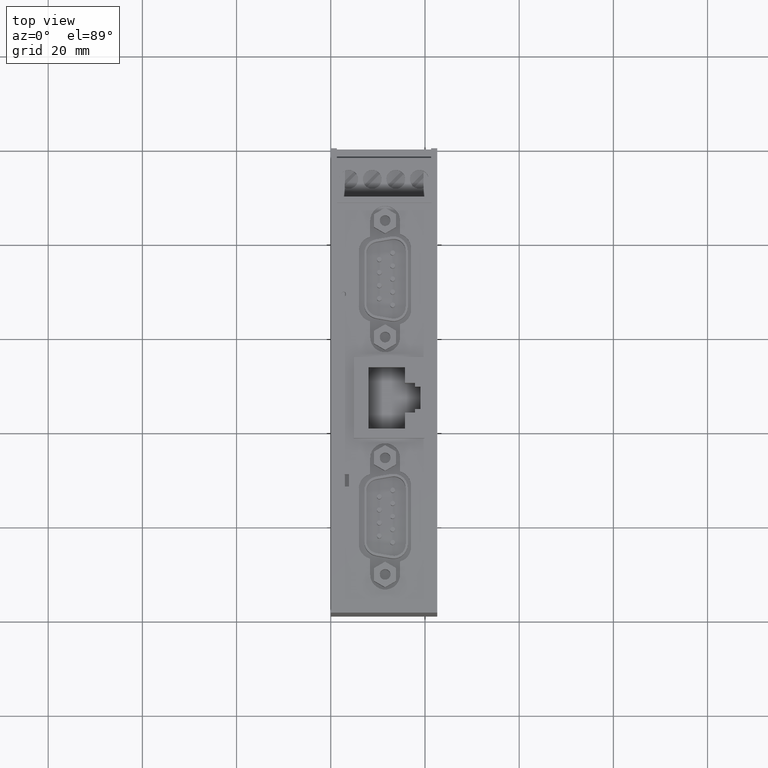
[diagram: clean part render]
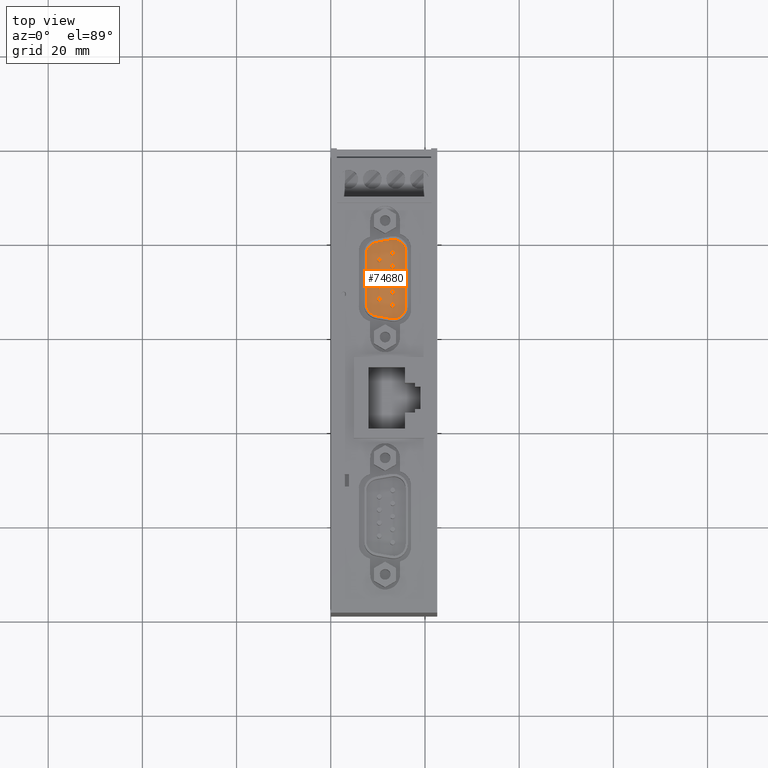
[diagram: same view with one face highlighted and labeled with its STEP entity id]
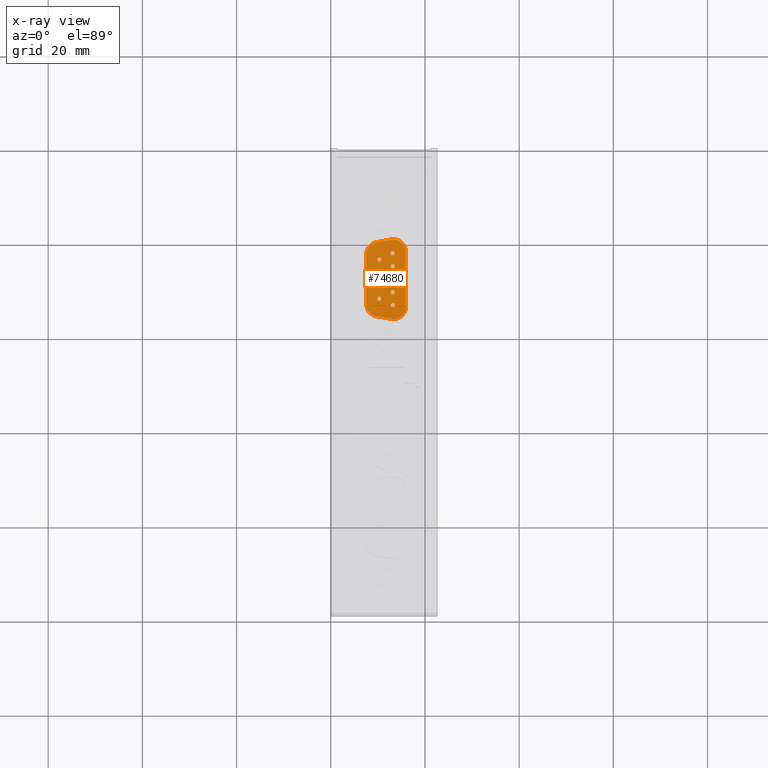
[diagram: x-ray of the same camera — body ghosted, the highlighted face saturated]
A machine part, top view. The second image highlights one B-rep face of the part: STEP entity #74680.
The next image is the same camera in x-ray: the body ghosted, the highlighted face saturated — about 0% of this face is hidden behind the body in this view.
In plain terms, the highlighted planar face has unit normal (0, -0, -1).
Its self-contained STEP definition (entity closure, byte-faithful):
#20310=CARTESIAN_POINT('',(2.91895186649419,104.799999999976,
10.3057559605303));
#20320=VERTEX_POINT('',#20310);
#20350=CARTESIAN_POINT('',(2.41895186649419,104.799999999976,
10.3057559605303));
#20360=DIRECTION('',(4.90822482988215E-15,-1.,-1.2878153174413E-13));
#20370=DIRECTION('',(-1.,-4.90822482988323E-15,8.39984454683187E-15));
#20380=AXIS2_PLACEMENT_3D('',#20350,#20360,#20370);
#20390=CIRCLE('',#20380,0.5);
#20400=CARTESIAN_POINT('',(1.91895186649419,104.799999999977,
10.3057559605303));
#20410=VERTEX_POINT('',#20400);
#20420=EDGE_CURVE('',#20320,#20410,#20390,.T.);
#62860=CARTESIAN_POINT('',(-17.6082481189499,104.799999999991,
12.9509999999802));
#62870=DIRECTION('',(-7.38964445188328E-13,-1.,8.76330016597908E-25));
#62880=DIRECTION('',(1.,-7.38964445188328E-13,-0.));
#62890=AXIS2_PLACEMENT_3D('',#62860,#62870,#62880);
#62900=PLANE('',#62890);
#70900=CARTESIAN_POINT('',(-1.53769563678201,104.79999999998,
7.54575596053984));
#70910=VERTEX_POINT('',#70900);
#70990=CARTESIAN_POINT('',(9.14559936904206,104.799999999972,
7.54575596052852));
#71000=VERTEX_POINT('',#70990);
#71030=CARTESIAN_POINT('',(28.9417518810975,104.799999999957,
7.54575596052835));
#71040=DIRECTION('',(1.,-7.38964445188328E-13,-8.56611879455543E-15));
#71050=VECTOR('',#71040,1.);
#71060=LINE('',#71030,#71050);
#71070=EDGE_CURVE('',#70910,#71000,#71060,.T.);
#71300=CARTESIAN_POINT('',(11.6470110625455,104.799999999969,
9.64468958996973));
#71310=VERTEX_POINT('',#71300);
#71340=CARTESIAN_POINT('',(9.14559936904208,104.799999999971,
10.0857559613941));
#71350=DIRECTION('',(-4.90822482988215E-15,1.,1.2878153174413E-13));
#71360=DIRECTION('',(0.984807722795907,2.71963580908673E-14,
-0.173648349032003));
#71370=AXIS2_PLACEMENT_3D('',#71340,#71350,#71360);
#71380=CIRCLE('',#71370,2.54000000086555);
#71390=EDGE_CURVE('',#71310,#71000,#71380,.T.);
#71620=CARTESIAN_POINT('',(12.2253635591452,104.799999999969,
12.9246895892657));
#71630=VERTEX_POINT('',#71620);
#71660=CARTESIAN_POINT('',(10.2375079124088,104.799999999971,
1.65099999990634));
#71670=DIRECTION('',(0.173648177666943,-1.28314026071052E-13,
0.984807753012206));
#71680=VECTOR('',#71670,1.);
#71690=LINE('',#71660,#71680);
#71700=EDGE_CURVE('',#71310,#71630,#71690,.T.);
#71930=CARTESIAN_POINT('',(9.71649820946184,104.799999999971,
15.9057450240982));
#71940=VERTEX_POINT('',#71930);
#71970=CARTESIAN_POINT('',(9.72395186649419,104.799999999971,
13.3657559605397));
#71980=DIRECTION('',(-4.90822482988215E-15,1.,1.2878153174413E-13));
#71990=DIRECTION('',(0.00787416145218496,-1.28738891144272E-13,
0.99996899831016));
#72000=AXIS2_PLACEMENT_3D('',#71970,#71980,#71990);
#72010=CIRCLE('',#72000,2.53999999999998);
#72020=EDGE_CURVE('',#71940,#71630,#72010,.T.);
#72250=CARTESIAN_POINT('',(-2.10859447365656,104.79999999998,
15.9057450240983));
#72260=VERTEX_POINT('',#72250);
#72290=CARTESIAN_POINT('',(28.9417518810975,104.799999999957,
15.905745024098));
#72300=DIRECTION('',(-1.,7.38964445188328E-13,8.54987468539064E-15));
#72310=VECTOR('',#72300,1.);
#72320=LINE('',#72290,#72310);
#72330=EDGE_CURVE('',#71940,#72260,#72320,.T.);
#72560=CARTESIAN_POINT('',(-4.61745982600397,104.799999999981,
12.9246895883985));
#72570=VERTEX_POINT('',#72560);
#72600=CARTESIAN_POINT('',(-2.11604813274053,104.79999999998,
13.3657559597805));
#72610=DIRECTION('',(-4.90822482988215E-15,1.,1.2878153174413E-13));
#72620=DIRECTION('',(-0.999999999999986,-4.9082465800848E-15,
1.68892250515967E-7));
#72630=AXIS2_PLACEMENT_3D('',#72600,#72610,#72620);
#72640=CIRCLE('',#72630,2.54000000076533);
#72650=EDGE_CURVE('',#72570,#72260,#72640,.T.);
#72880=CARTESIAN_POINT('',(-4.03910732943316,104.799999999981,
9.64468958926588));
#72890=VERTEX_POINT('',#72880);
#72920=CARTESIAN_POINT('',(-2.62960417942074,104.79999999998,
1.65099999990634));
#72930=DIRECTION('',(0.173648177666926,-1.2832790385886E-13,
-0.984807753012209));
#72940=VECTOR('',#72930,1.);
#72950=LINE('',#72920,#72940);
#72960=EDGE_CURVE('',#72570,#72890,#72950,.T.);
#73160=CARTESIAN_POINT('',(-1.53769563678209,104.799999999979,
10.0857559605399));
#73170=DIRECTION('',(-4.90822482988215E-15,1.,1.2878153174413E-13));
#73180=DIRECTION('',(-0.0155103065949043,1.2868991227896E-13,
-0.999879707959579));
#73190=AXIS2_PLACEMENT_3D('',#73160,#73170,#73180);
#73200=CIRCLE('',#73190,2.54000000000007);
#73210=EDGE_CURVE('',#70910,#72890,#73200,.T.);
#73330=CARTESIAN_POINT('',(3.80395186649423,104.799999999975,
13.1457559605303));
#73340=DIRECTION('',(4.90822482988215E-15,-1.,-1.2878153174413E-13));
#73350=DIRECTION('',(-1.,-4.90822482988314E-15,7.69485292619489E-15));
#73360=AXIS2_PLACEMENT_3D('',#73330,#73340,#73350);
#73370=CIRCLE('',#73360,0.5);
#73380=CARTESIAN_POINT('',(4.30395186649423,104.799999999975,
13.1457559605303));
#73390=VERTEX_POINT('',#73380);
#73400=CARTESIAN_POINT('',(3.30395186649423,104.799999999975,
13.1457559605303));
#73410=VERTEX_POINT('',#73400);
#73420=EDGE_CURVE('',#73390,#73410,#73370,.T.);
#73430=ORIENTED_EDGE('',*,*,#73420,.T.);
#73440=EDGE_CURVE('',#73410,#73390,#73370,.T.);
#73450=ORIENTED_EDGE('',*,*,#73440,.T.);
#73460=EDGE_LOOP('',(#73450,#73430));
#73470=FACE_BOUND('',#73460,.T.);
#73480=CARTESIAN_POINT('',(6.57395186649423,104.799999999973,
13.1457559605302));
#73490=DIRECTION('',(4.90822482988215E-15,-1.,-1.2878153174413E-13));
#73500=DIRECTION('',(1.,4.90822482988332E-15,-9.10483616746884E-15));
#73510=AXIS2_PLACEMENT_3D('',#73480,#73490,#73500);
#73520=CIRCLE('',#73510,0.5);
#73530=CARTESIAN_POINT('',(6.07395186649423,104.799999999974,
13.1457559605302));
#73540=VERTEX_POINT('',#73530);
#73550=CARTESIAN_POINT('',(7.07395186649423,104.799999999973,
13.1457559605302));
#73560=VERTEX_POINT('',#73550);
#73570=EDGE_CURVE('',#73540,#73560,#73520,.T.);
#73580=ORIENTED_EDGE('',*,*,#73570,.T.);
#73590=EDGE_CURVE('',#73560,#73540,#73520,.T.);
#73600=ORIENTED_EDGE('',*,*,#73590,.T.);
#73610=EDGE_LOOP('',(#73600,#73580));
#73620=FACE_BOUND('',#73610,.T.);
#73630=CARTESIAN_POINT('',(5.18895186649419,104.799999999974,
10.3057559605302));
#73640=DIRECTION('',(4.90822482988215E-15,-1.,-1.2878153174413E-13));
#73650=DIRECTION('',(-1.,-4.90822482988323E-15,8.39984454683187E-15));
#73660=AXIS2_PLACEMENT_3D('',#73630,#73640,#73650);
#73670=CIRCLE('',#73660,0.5);
#73680=CARTESIAN_POINT('',(5.68895186649419,104.799999999974,
10.3057559605302));
#73690=VERTEX_POINT('',#73680);
#73700=CARTESIAN_POINT('',(4.68895186649419,104.799999999974,
10.3057559605302));
#73710=VERTEX_POINT('',#73700);
#73720=EDGE_CURVE('',#73690,#73710,#73670,.T.);
#73730=ORIENTED_EDGE('',*,*,#73720,.T.);
#73740=EDGE_CURVE('',#73710,#73690,#73670,.T.);
#73750=ORIENTED_EDGE('',*,*,#73740,.T.);
#73760=EDGE_LOOP('',(#73750,#73730));
#73770=FACE_BOUND('',#73760,.T.);
#73780=CARTESIAN_POINT('',(1.03395186649423,104.799999999977,
13.1457559605303));
#73790=DIRECTION('',(4.90822482988215E-15,-1.,-1.2878153174413E-13));
#73800=DIRECTION('',(-1.,-4.90822482988314E-15,7.69485292619489E-15));
#73810=AXIS2_PLACEMENT_3D('',#73780,#73790,#73800);
#73820=CIRCLE('',#73810,0.5);
#73830=CARTESIAN_POINT('',(1.53395186649423,104.799999999977,
13.1457559605303));
#73840=VERTEX_POINT('',#73830);
#73850=CARTESIAN_POINT('',(0.533951866494231,104.799999999977,
13.1457559605303));
#73860=VERTEX_POINT('',#73850);
#73870=EDGE_CURVE('',#73840,#73860,#73820,.T.);
#73880=ORIENTED_EDGE('',*,*,#73870,.T.);
#73890=EDGE_CURVE('',#73860,#73840,#73820,.T.);
#73900=ORIENTED_EDGE('',*,*,#73890,.T.);
#73910=EDGE_LOOP('',(#73900,#73880));
#73920=FACE_BOUND('',#73910,.T.);
#73930=CARTESIAN_POINT('',(-1.73604813350576,104.799999999979,
13.1457559605303));
#73940=DIRECTION('',(4.90822482988215E-15,-1.,-1.2878153174413E-13));
#73950=DIRECTION('',(-1.,-4.90822482988314E-15,7.6948529261949E-15));
#73960=AXIS2_PLACEMENT_3D('',#73930,#73940,#73950);
#73970=CIRCLE('',#73960,0.5);
#73980=CARTESIAN_POINT('',(-1.23604813350576,104.799999999979,
13.1457559605303));
#73990=VERTEX_POINT('',#73980);
#74000=CARTESIAN_POINT('',(-2.23604813350577,104.799999999979,
13.1457559605303));
#74010=VERTEX_POINT('',#74000);
#74020=EDGE_CURVE('',#73990,#74010,#73970,.T.);
#74030=ORIENTED_EDGE('',*,*,#74020,.T.);
#74040=EDGE_CURVE('',#74010,#73990,#73970,.T.);
#74050=ORIENTED_EDGE('',*,*,#74040,.T.);
#74060=EDGE_LOOP('',(#74050,#74030));
#74070=FACE_BOUND('',#74060,.T.);
#74080=CARTESIAN_POINT('',(-0.35104813350581,104.799999999978,
10.3057559605303));
#74090=DIRECTION('',(4.90822482988215E-15,-1.,-1.2878153174413E-13));
#74100=DIRECTION('',(-1.,-4.90822482988323E-15,8.39984454683187E-15));
#74110=AXIS2_PLACEMENT_3D('',#74080,#74090,#74100);
#74120=CIRCLE('',#74110,0.500000000000001);
#74130=CARTESIAN_POINT('',(0.148951866494191,104.799999999978,
10.3057559605303));
#74140=VERTEX_POINT('',#74130);
#74150=CARTESIAN_POINT('',(-0.851048133505811,104.799999999978,
10.3057559605303));
#74160=VERTEX_POINT('',#74150);
#74170=EDGE_CURVE('',#74140,#74160,#74120,.T.);
#74180=ORIENTED_EDGE('',*,*,#74170,.T.);
#74190=EDGE_CURVE('',#74160,#74140,#74120,.T.);
#74200=ORIENTED_EDGE('',*,*,#74190,.T.);
#74210=EDGE_LOOP('',(#74200,#74180));
#74220=FACE_BOUND('',#74210,.T.);
#74230=CARTESIAN_POINT('',(9.34395186649423,104.799999999971,
13.1457559605302));
#74240=DIRECTION('',(4.90822482988215E-15,-1.,-1.2878153174413E-13));
#74250=DIRECTION('',(-1.,-4.90822482988314E-15,7.6948529261949E-15));
#74260=AXIS2_PLACEMENT_3D('',#74230,#74240,#74250);
#74270=CIRCLE('',#74260,0.5);
#74280=CARTESIAN_POINT('',(8.84395186649423,104.799999999972,
13.1457559605302));
#74290=VERTEX_POINT('',#74280);
#74300=CARTESIAN_POINT('',(9.84395186649423,104.799999999971,
13.1457559605302));
#74310=VERTEX_POINT('',#74300);
#74320=EDGE_CURVE('',#74290,#74310,#74270,.T.);
#74330=ORIENTED_EDGE('',*,*,#74320,.T.);
#74340=EDGE_CURVE('',#74310,#74290,#74270,.T.);
#74350=ORIENTED_EDGE('',*,*,#74340,.T.);
#74360=EDGE_LOOP('',(#74350,#74330));
#74370=FACE_BOUND('',#74360,.T.);
#74380=EDGE_CURVE('',#20410,#20320,#20390,.T.);
#74390=ORIENTED_EDGE('',*,*,#74380,.T.);
#74400=ORIENTED_EDGE('',*,*,#20420,.T.);
#74410=EDGE_LOOP('',(#74400,#74390));
#74420=FACE_BOUND('',#74410,.T.);
#74430=CARTESIAN_POINT('',(7.95895186649419,104.799999999972,
10.3057559605302));
#74440=DIRECTION('',(4.90822482988215E-15,-1.,-1.2878153174413E-13));
#74450=DIRECTION('',(-1.,-4.90822482988323E-15,8.39984454683187E-15));
#74460=AXIS2_PLACEMENT_3D('',#74430,#74440,#74450);
#74470=CIRCLE('',#74460,0.5);
#74480=CARTESIAN_POINT('',(8.45895186649419,104.799999999972,
10.3057559605302));
#74490=VERTEX_POINT('',#74480);
#74500=CARTESIAN_POINT('',(7.45895186649419,104.799999999972,
10.3057559605302));
#74510=VERTEX_POINT('',#74500);
#74520=EDGE_CURVE('',#74490,#74510,#74470,.T.);
#74530=ORIENTED_EDGE('',*,*,#74520,.T.);
#74540=EDGE_CURVE('',#74510,#74490,#74470,.T.);
#74550=ORIENTED_EDGE('',*,*,#74540,.T.);
#74560=EDGE_LOOP('',(#74550,#74530));
#74570=FACE_BOUND('',#74560,.T.);
#74580=ORIENTED_EDGE('',*,*,#71700,.F.);
#74590=ORIENTED_EDGE('',*,*,#72020,.T.);
#74600=ORIENTED_EDGE('',*,*,#72330,.F.);
#74610=ORIENTED_EDGE('',*,*,#72650,.T.);
#74620=ORIENTED_EDGE('',*,*,#72960,.F.);
#74630=ORIENTED_EDGE('',*,*,#73210,.T.);
#74640=ORIENTED_EDGE('',*,*,#71070,.F.);
#74650=ORIENTED_EDGE('',*,*,#71390,.T.);
#74660=EDGE_LOOP('',(#74650,#74640,#74630,#74620,#74610,#74600,#74590,
#74580));
#74670=FACE_OUTER_BOUND('',#74660,.T.);
#74680=ADVANCED_FACE('',(#73470,#73620,#73770,#73920,#74070,#74220,
#74370,#74420,#74570,#74670),#62900,.F.);